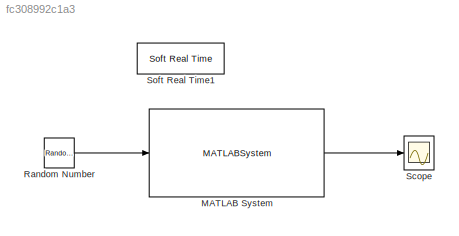
MODEL slx_fc308992c1a3
KIND model
CONFIG AbsTol = auto
CONFIG EnableMultiTasking = off
CONFIG FixedStep = 1/128
CONFIG MaxStep = auto
CONFIG MinStep = auto
CONFIG RelTol = 1e-3
CONFIG SampleTimeConstraint = Unconstrained
CONFIG Solver = FixedStepDiscrete
CONFIG SolverName = FixedStepDiscrete
CONFIG StartFcn = hudpr = dsp.UDPReceiver('LocalIPPort',9092,'RemoteIPAddress','127.0.0.1','ReceiveBufferSize',1024);\nassignin('base', 'hudpr', hudpr)
CONFIG StartTime = 0.0
CONFIG StopTime = 10.0
BLOCK [MATLABSystem] MATLAB System
  MaskDisplay = disp('EEGimporterUDP');\nport_label('input',1,'u');\nport_label('output',1,'y');
  MaskType = EEGimporterUDP
  Ports = [1, 1]
  SimulateUsing = Code generation
  System = EEGimporterUDP
BLOCK [RandomNumber] Random Number
  Mean = 5
  SampleTime = 1/128
BLOCK [Scope] Scope
  NumInputPorts = 1
  Ports = [1]
  ScopeSpecificationString = Simulink.scopes.TimeScopeBlockCfg('CurrentConfiguration', extmgr.ConfigurationSet(extmgr.Configuration('Core','General UI',true),extmgr.Configuration('Core','Source UI',true),extmgr.Configuration('Sources','WiredSimulink',true),extmgr.Configuration('Visuals','Time Domain',true,'SerializedDisplays',{struct('MinYLimReal','-660.25641','MaxYLimReal','5942.30769','YLabelReal','','MinYLimMag',' 0.00000'...<+1785ch>
BLOCK [Reference] Soft Real Time1  REF=utility/Soft Real Time  (lib defined in slx_8818c3a16fdf)
  Ports = []
  SourceBlock = utility/Soft Real Time
LINE MATLAB System:1 -> Scope:1
LINE Random Number:1 -> MATLAB System:1
